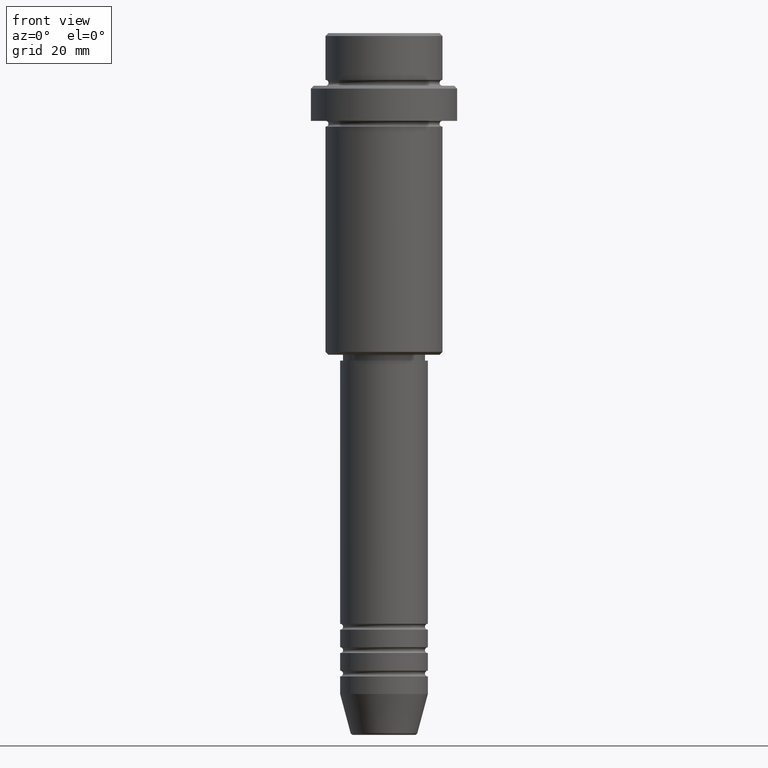
[diagram: clean part render]
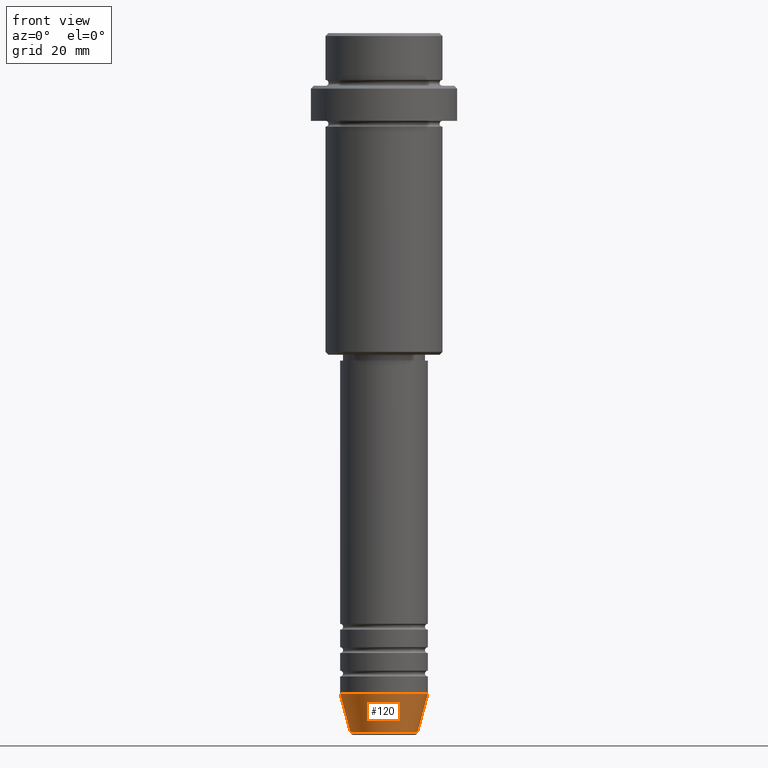
[diagram: same view with one face highlighted and labeled with its STEP entity id]
A machine part, front view. The second image highlights one B-rep face of the part: STEP entity #120.
In plain terms, the highlighted conical surface has half-angle 15 deg.
Its self-contained STEP definition (entity closure, byte-faithful):
#7 = ORIENTED_EDGE ( 'NONE', *, *, #806, .F. ) ;
#10 = CARTESIAN_POINT ( 'NONE',  ( 0.000000000000000000, 0.000000000000000000, -113.0000000000000000 ) ) ;
#59 = LINE ( 'NONE', #1178, #154 ) ;
#68 = FACE_OUTER_BOUND ( 'NONE', #643, .T. ) ;
#70 = DIRECTION ( 'NONE',  ( -0.2588190451025213501, 3.169619151431772337E-17, 0.9659258262890680902 ) ) ;
#120 = ADVANCED_FACE ( 'NONE', ( #68 ), #927, .T. ) ;
#151 = AXIS2_PLACEMENT_3D ( 'NONE', #735, #1266, #1037 ) ;
#152 = CARTESIAN_POINT ( 'NONE',  ( 7.500000000000000000, 0.000000000000000000, -113.0000000000000000 ) ) ;
#154 = VECTOR ( 'NONE', #741, 1000.000000000000000 ) ;
#182 = CARTESIAN_POINT ( 'NONE',  ( -7.500000000000000000, 9.184850993605147944E-16, -113.0000000000000000 ) ) ;
#378 = EDGE_CURVE ( 'NONE', #447, #757, #59, .T. ) ;
#411 = AXIS2_PLACEMENT_3D ( 'NONE', #10, #453, #674 ) ;
#447 = VERTEX_POINT ( 'NONE', #491 ) ;
#453 = DIRECTION ( 'NONE',  ( -0.000000000000000000, -0.000000000000000000, 1.000000000000000000 ) ) ;
#461 = CIRCLE ( 'NONE', #411, 7.500000000000000000 ) ;
#479 = CARTESIAN_POINT ( 'NONE',  ( -7.500000000000000000, 9.184850993605147944E-16, -113.0000000000000000 ) ) ;
#491 = CARTESIAN_POINT ( 'NONE',  ( 5.723655072137191269, 0.000000000000000000, -119.6294095225512564 ) ) ;
#596 = ORIENTED_EDGE ( 'NONE', *, *, #618, .F. ) ;
#618 = EDGE_CURVE ( 'NONE', #749, #757, #461, .T. ) ;
#643 = EDGE_LOOP ( 'NONE', ( #7, #1154, #833, #596 ) ) ;
#674 = DIRECTION ( 'NONE',  ( 1.000000000000000000, 0.000000000000000000, 0.000000000000000000 ) ) ;
#722 = DIRECTION ( 'NONE',  ( -0.000000000000000000, -0.000000000000000000, 1.000000000000000000 ) ) ;
#735 = CARTESIAN_POINT ( 'NONE',  ( 0.000000000000000000, 0.000000000000000000, -113.0000000000000000 ) ) ;
#741 = DIRECTION ( 'NONE',  ( 0.2588190451025213501, 0.000000000000000000, 0.9659258262890680902 ) ) ;
#749 = VERTEX_POINT ( 'NONE', #479 ) ;
#757 = VERTEX_POINT ( 'NONE', #152 ) ;
#796 = AXIS2_PLACEMENT_3D ( 'NONE', #848, #722, #1277 ) ;
#806 = EDGE_CURVE ( 'NONE', #1285, #749, #849, .T. ) ;
#833 = ORIENTED_EDGE ( 'NONE', *, *, #378, .T. ) ;
#848 = CARTESIAN_POINT ( 'NONE',  ( 0.000000000000000000, 0.000000000000000000, -119.6294095225512564 ) ) ;
#849 = LINE ( 'NONE', #182, #1343 ) ;
#927 = CONICAL_SURFACE ( 'NONE', #151, 7.500000000000000000, 0.2617993877991500740 ) ;
#997 = CIRCLE ( 'NONE', #796, 5.723655072137191269 ) ;
#1037 = DIRECTION ( 'NONE',  ( 1.000000000000000000, 0.000000000000000000, 0.000000000000000000 ) ) ;
#1154 = ORIENTED_EDGE ( 'NONE', *, *, #1334, .T. ) ;
#1178 = CARTESIAN_POINT ( 'NONE',  ( 7.500000000000000000, 0.000000000000000000, -113.0000000000000000 ) ) ;
#1180 = CARTESIAN_POINT ( 'NONE',  ( -5.723655072137191269, 8.097153428560735915E-16, -119.6294095225512564 ) ) ;
#1266 = DIRECTION ( 'NONE',  ( -0.000000000000000000, -0.000000000000000000, 1.000000000000000000 ) ) ;
#1277 = DIRECTION ( 'NONE',  ( 1.000000000000000000, 0.000000000000000000, 0.000000000000000000 ) ) ;
#1285 = VERTEX_POINT ( 'NONE', #1180 ) ;
#1334 = EDGE_CURVE ( 'NONE', #1285, #447, #997, .T. ) ;
#1343 = VECTOR ( 'NONE', #70, 1000.000000000000000 ) ;